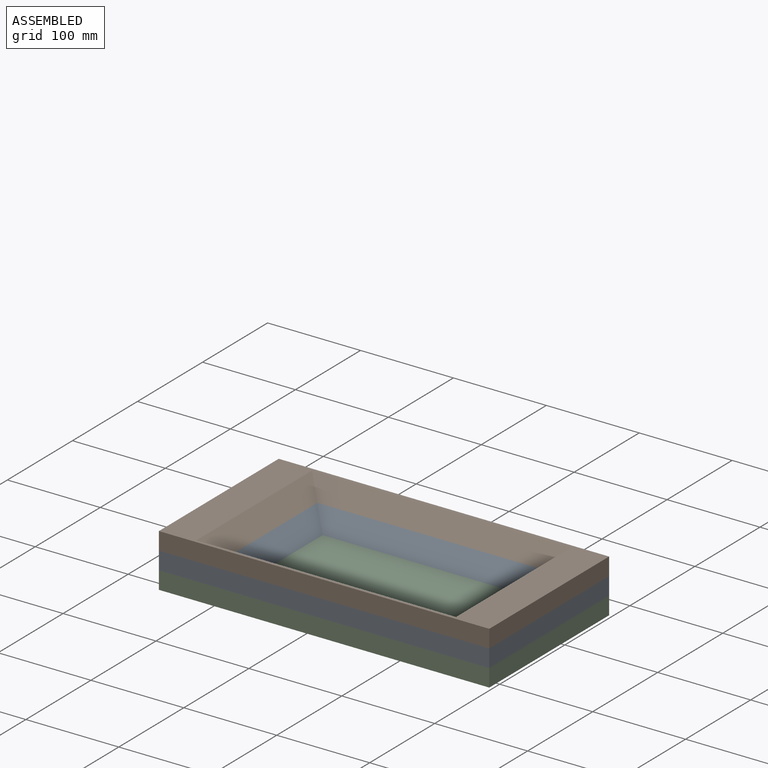
[diagram: assembled view]
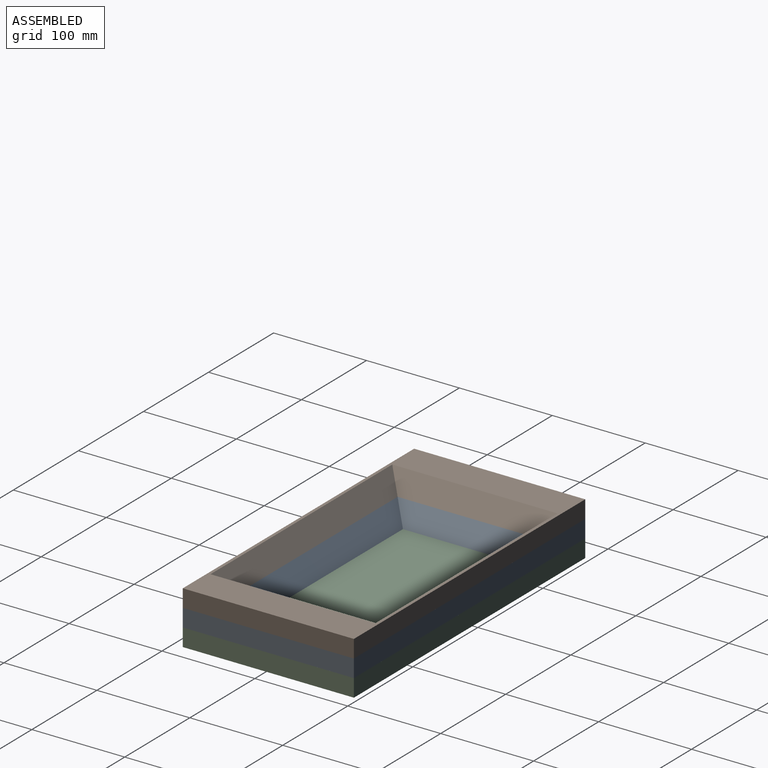
[diagram: assembled view, second angle]
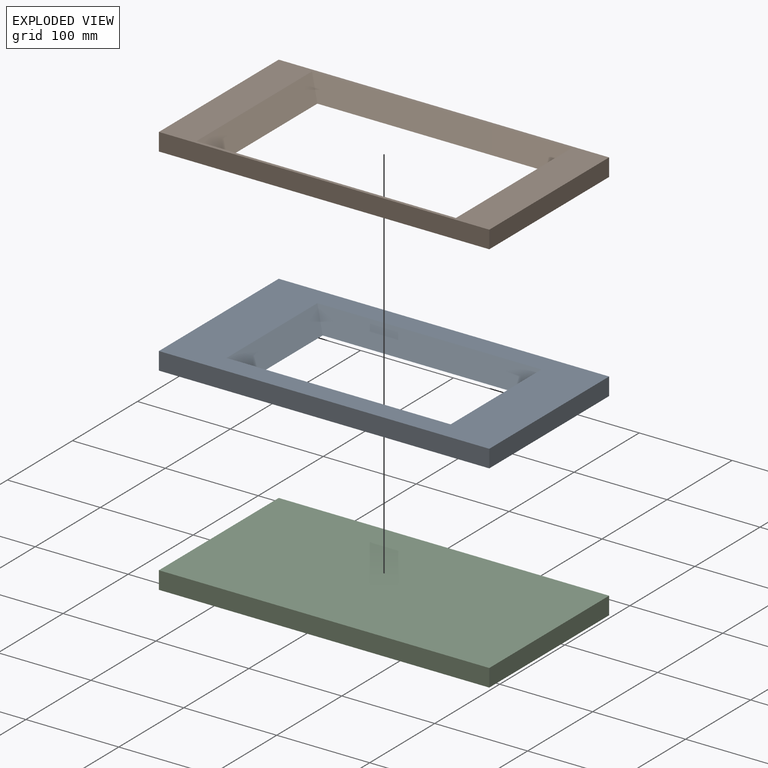
[diagram: exploded view]
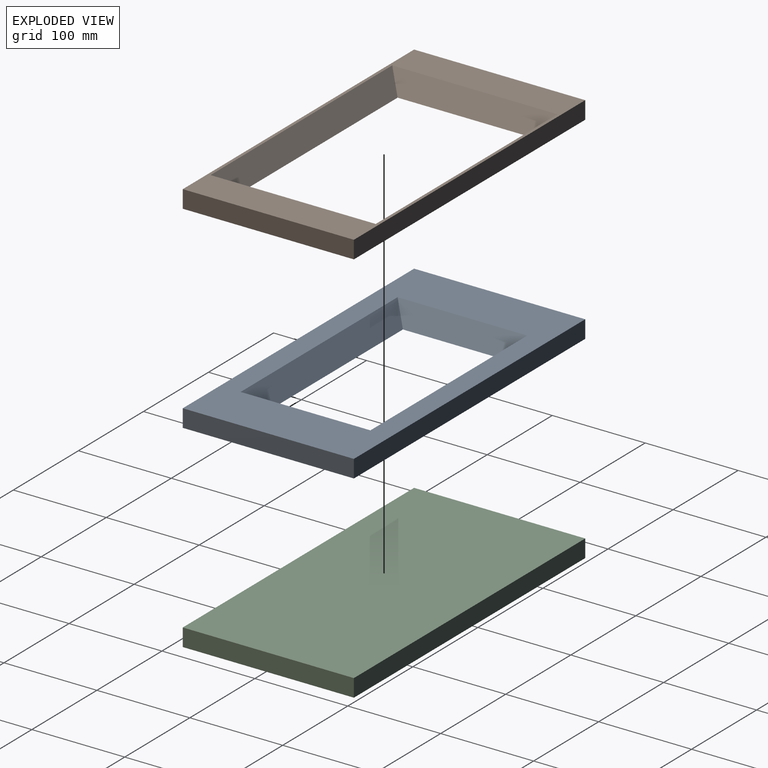
[diagram: exploded view, second angle]
ASSEMBLY  parts=3 mates=2
PART A: 10 faces, bbox 355.6x184.2x19.1 mm
  f0: plane 184.15x19.05mm, normal (1,0,0), area 3508.1mm2, adj f1,f3,f4,f5
  f1: plane 355.6x19.05mm, normal (0,1,0), area 6774.2mm2, adj f0,f2,f4,f5
  f2: plane 184.15x19.05mm, normal (-1,0,0), area 3508.1mm2, adj f1,f3,f4,f5
  f3: plane 355.6x19.05mm, normal (0,-1,0), area 6774.2mm2, adj f0,f2,f4,f5
  f4: plane 355.6x184.15mm, normal (0,0,1), area 31774.1mm2, adj f0,f1,f2,f3,f6,f7,f8,f9
  f5: plane 355.6x184.15mm, normal (0,0,-1), area 44838.6mm2, adj f0,f1,f2,f3,f6,f7,f8,f9
  f6: plane 241.3x19.05mm, normal (0,-0.71,0.71), area 5987.6mm2, adj f4,f5,f7,f8
  f7: plane 139.7x19.05mm, normal (-0.71,0,0.71), area 3250.4mm2, adj f4,f5,f6,f9
  f8: plane 139.7x19.05mm, normal (0.71,0,0.71), area 3250.4mm2, adj f4,f5,f6,f9
  f9: plane 241.3x19.05mm, normal (0,0.71,0.71), area 5987.6mm2, adj f4,f5,f7,f8
PART B: 10 faces, bbox 355.6x184.2x19.1 mm
  f0: plane 184.15x19.05mm, normal (1,0,0), area 3508.1mm2, adj f1,f3,f4,f5
  f1: plane 355.6x19.05mm, normal (0,1,0), area 6774.2mm2, adj f0,f2,f4,f5
  f2: plane 184.15x19.05mm, normal (-1,0,0), area 3508.1mm2, adj f1,f3,f4,f5
  f3: plane 355.6x19.05mm, normal (0,-1,0), area 6774.2mm2, adj f0,f2,f4,f5
  f4: plane 355.6x184.15mm, normal (0,0,1), area 15806.4mm2, adj f0,f1,f2,f3,f6,f7,f8,f9
  f5: plane 355.6x184.15mm, normal (0,0,-1), area 31774.1mm2, adj f0,f1,f2,f3,f6,f7,f8,f9
  f6: plane 279.4x19.05mm, normal (0,-0.71,0.71), area 7014mm2, adj f4,f5,f7,f8
  f7: plane 177.8x19.05mm, normal (-0.71,0,0.71), area 4276.8mm2, adj f4,f5,f6,f9
  f8: plane 177.8x19.05mm, normal (0.71,0,0.71), area 4276.8mm2, adj f4,f5,f6,f9
  f9: plane 279.4x19.05mm, normal (0,0.71,0.71), area 7014mm2, adj f4,f5,f7,f8
PART C: 6 faces, bbox 355.6x184.2x19.1 mm
  f0: plane 184.15x19.05mm, normal (1,0,0), area 3508.1mm2, adj f1,f3,f4,f5
  f1: plane 355.6x19.05mm, normal (0,1,0), area 6774.2mm2, adj f0,f2,f4,f5
  f2: plane 184.15x19.05mm, normal (-1,0,0), area 3508.1mm2, adj f1,f3,f4,f5
  f3: plane 355.6x19.05mm, normal (0,-1,0), area 6774.2mm2, adj f0,f2,f4,f5
  f4: plane 355.6x184.15mm, normal (0,0,1), area 65483.7mm2, adj f0,f1,f2,f3
  f5: plane 355.6x184.15mm, normal (0,0,-1), area 65483.7mm2, adj f0,f1,f2,f3
PLACE A t=(-48.91,34.78,65.96)mm
PLACE B t=(-48.91,34.78,85.01)mm
PLACE C t=(-48.91,34.78,46.91)mm
MATE fastened C.f4 <-> A.f5  axis (0,0,1) through (-48.91,34.78,65.96)mm
MATE fastened A.f4 <-> B.f5  axis (0,0,1) through (-48.91,34.78,85.01)mm
